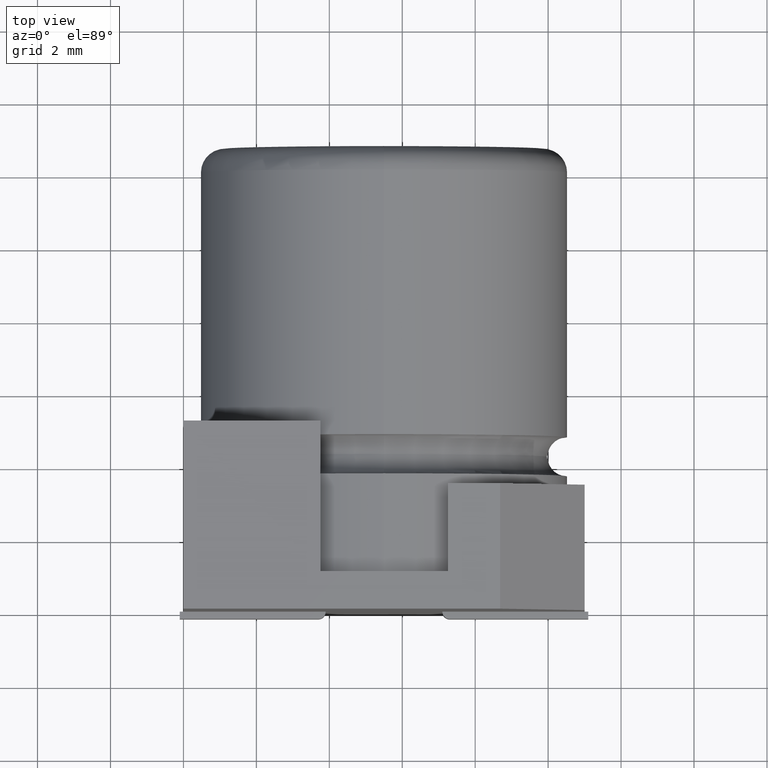
[diagram: clean part render]
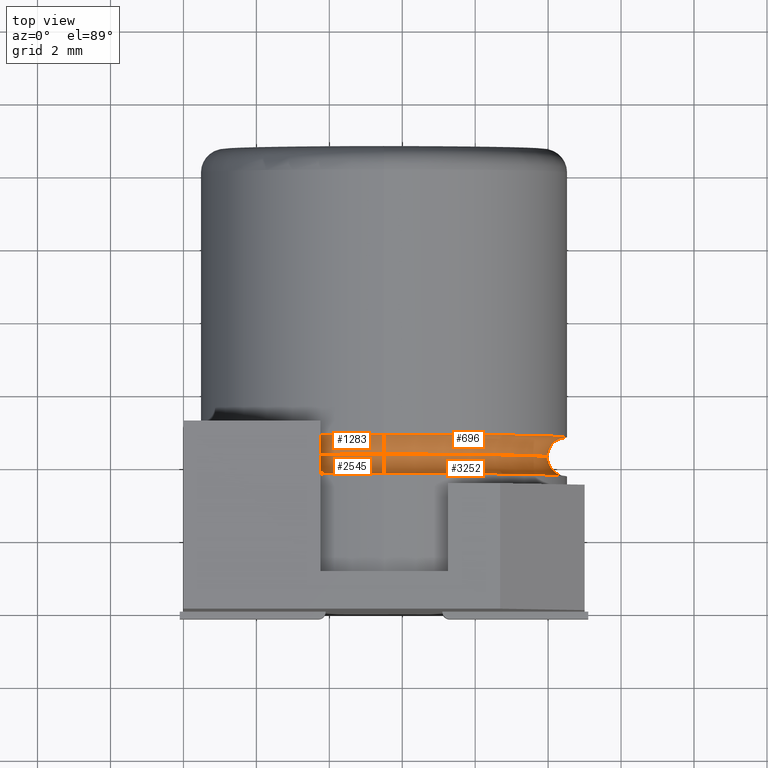
[diagram: same view with one multi-face feature highlighted, each face labeled with its STEP entity id]
A machine part, top view. The highlighted faces form ONE feature: a constant-radius fillet chain: 4 tangent blend faces with common blend radius 0.5353 mm. The faces share edges in the B-rep.
Their STEP definitions:
[1] entity #2545 (Torus):
#5 = DIRECTION ( 'NONE',  ( 1.000000000000000000, 0.0000000000000000000, -1.224646799147353200E-016 ) ) ;
#158 = ORIENTED_EDGE ( 'NONE', *, *, #3219, .F. ) ;
#369 = CARTESIAN_POINT ( 'NONE',  ( 5.500000000000000900, 4.254420000000000500, -0.7668750000000004200 ) ) ;
#373 = EDGE_CURVE ( 'NONE', #527, #607, #2134, .T. ) ;
#378 = CARTESIAN_POINT ( 'NONE',  ( 5.500000000000000900, 3.719070000000000300, -0.2315250000000006500 ) ) ;
#404 = DIRECTION ( 'NONE',  ( 0.0000000000000000000, 0.0000000000000000000, 1.000000000000000000 ) ) ;
#527 = VERTEX_POINT ( 'NONE', #378 ) ;
#591 = DIRECTION ( 'NONE',  ( -0.0000000000000000000, -1.000000000000000000, -0.0000000000000000000 ) ) ;
#593 = EDGE_CURVE ( 'NONE', #3420, #1760, #3344, .T. ) ;
#607 = VERTEX_POINT ( 'NONE', #369 ) ;
#652 = AXIS2_PLACEMENT_3D ( 'NONE', #2932, #591, #1365 ) ;
#870 = ORIENTED_EDGE ( 'NONE', *, *, #593, .F. ) ;
#899 = CARTESIAN_POINT ( 'NONE',  ( 5.500000000000000000, 3.719070000000000300, -5.250000000000000000 ) ) ;
#1021 = EDGE_LOOP ( 'NONE', ( #1366, #1224, #870, #158 ) ) ;
#1078 = CARTESIAN_POINT ( 'NONE',  ( 5.500000000000000000, 3.719070000000000300, -10.26847499999999900 ) ) ;
#1224 = ORIENTED_EDGE ( 'NONE', *, *, #2794, .T. ) ;
#1365 = DIRECTION ( 'NONE',  ( 0.0000000000000000000, 0.0000000000000000000, -1.000000000000000000 ) ) ;
#1366 = ORIENTED_EDGE ( 'NONE', *, *, #373, .T. ) ;
#1447 = AXIS2_PLACEMENT_3D ( 'NONE', #1734, #1473, #404 ) ;
#1473 = DIRECTION ( 'NONE',  ( -1.000000000000000000, 0.0000000000000000000, 0.0000000000000000000 ) ) ;
#1474 = DIRECTION ( 'NONE',  ( -0.0000000000000000000, -1.000000000000000000, -0.0000000000000000000 ) ) ;
#1693 = DIRECTION ( 'NONE',  ( 0.0000000000000000000, 0.0000000000000000000, -1.000000000000000000 ) ) ;
#1707 = AXIS2_PLACEMENT_3D ( 'NONE', #2626, #5, #3140 ) ;
#1734 = CARTESIAN_POINT ( 'NONE',  ( 5.500000000000000000, 4.254420000000000500, -10.26847499999999900 ) ) ;
#1760 = VERTEX_POINT ( 'NONE', #1779 ) ;
#1779 = CARTESIAN_POINT ( 'NONE',  ( 5.500000000000000000, 4.254420000000000500, -9.733124999999999400 ) ) ;
#2134 = CIRCLE ( 'NONE', #1707, 0.5353499999999997700 ) ;
#2480 = DIRECTION ( 'NONE',  ( -0.0000000000000000000, -1.000000000000000000, -0.0000000000000000000 ) ) ;
#2526 = DIRECTION ( 'NONE',  ( 0.0000000000000000000, 0.0000000000000000000, -1.000000000000000000 ) ) ;
#2545 = ADVANCED_FACE ( 'NONE', ( #3054 ), #2846, .F. ) ;
#2605 = AXIS2_PLACEMENT_3D ( 'NONE', #899, #2480, #1693 ) ;
#2626 = CARTESIAN_POINT ( 'NONE',  ( 5.500000000000000900, 4.254420000000000500, -0.2315250000000006500 ) ) ;
#2794 = EDGE_CURVE ( 'NONE', #607, #1760, #2972, .T. ) ;
#2846 = TOROIDAL_SURFACE ( 'NONE', #652, 5.018474999999999600, 0.5353499999999997700 ) ;
#2932 = CARTESIAN_POINT ( 'NONE',  ( 5.500000000000000000, 4.254420000000000500, -5.250000000000000000 ) ) ;
#2972 = CIRCLE ( 'NONE', #3107, 4.483125000000000200 ) ;
#3035 = CIRCLE ( 'NONE', #2605, 5.018474999999998700 ) ;
#3054 = FACE_OUTER_BOUND ( 'NONE', #1021, .T. ) ;
#3107 = AXIS2_PLACEMENT_3D ( 'NONE', #3305, #1474, #2526 ) ;
#3140 = DIRECTION ( 'NONE',  ( 0.0000000000000000000, 0.0000000000000000000, -1.000000000000000000 ) ) ;
#3219 = EDGE_CURVE ( 'NONE', #527, #3420, #3035, .T. ) ;
#3305 = CARTESIAN_POINT ( 'NONE',  ( 5.500000000000000000, 4.254420000000000500, -5.250000000000000000 ) ) ;
#3344 = CIRCLE ( 'NONE', #1447, 0.5353500000000004400 ) ;
#3420 = VERTEX_POINT ( 'NONE', #1078 ) ;
[2] entity #3252 (Torus):
#5 = DIRECTION ( 'NONE',  ( 1.000000000000000000, 0.0000000000000000000, -1.224646799147353200E-016 ) ) ;
#332 = AXIS2_PLACEMENT_3D ( 'NONE', #1801, #3076, #2550 ) ;
#369 = CARTESIAN_POINT ( 'NONE',  ( 5.500000000000000900, 4.254420000000000500, -0.7668750000000004200 ) ) ;
#373 = EDGE_CURVE ( 'NONE', #527, #607, #2134, .T. ) ;
#378 = CARTESIAN_POINT ( 'NONE',  ( 5.500000000000000900, 3.719070000000000300, -0.2315250000000006500 ) ) ;
#404 = DIRECTION ( 'NONE',  ( 0.0000000000000000000, 0.0000000000000000000, 1.000000000000000000 ) ) ;
#463 = CARTESIAN_POINT ( 'NONE',  ( 5.500000000000000000, 3.719070000000000300, -5.250000000000000000 ) ) ;
#527 = VERTEX_POINT ( 'NONE', #378 ) ;
#593 = EDGE_CURVE ( 'NONE', #3420, #1760, #3344, .T. ) ;
#607 = VERTEX_POINT ( 'NONE', #369 ) ;
#683 = EDGE_CURVE ( 'NONE', #1760, #607, #3395, .T. ) ;
#744 = DIRECTION ( 'NONE',  ( 0.0000000000000000000, 0.0000000000000000000, -1.000000000000000000 ) ) ;
#767 = ORIENTED_EDGE ( 'NONE', *, *, #683, .T. ) ;
#1029 = ORIENTED_EDGE ( 'NONE', *, *, #373, .F. ) ;
#1069 = ORIENTED_EDGE ( 'NONE', *, *, #2908, .F. ) ;
#1078 = CARTESIAN_POINT ( 'NONE',  ( 5.500000000000000000, 3.719070000000000300, -10.26847499999999900 ) ) ;
#1334 = AXIS2_PLACEMENT_3D ( 'NONE', #1954, #1933, #2221 ) ;
#1410 = CIRCLE ( 'NONE', #2681, 5.018474999999998700 ) ;
#1447 = AXIS2_PLACEMENT_3D ( 'NONE', #1734, #1473, #404 ) ;
#1473 = DIRECTION ( 'NONE',  ( -1.000000000000000000, 0.0000000000000000000, 0.0000000000000000000 ) ) ;
#1656 = TOROIDAL_SURFACE ( 'NONE', #1334, 5.018474999999999600, 0.5353499999999997700 ) ;
#1707 = AXIS2_PLACEMENT_3D ( 'NONE', #2626, #5, #3140 ) ;
#1734 = CARTESIAN_POINT ( 'NONE',  ( 5.500000000000000000, 4.254420000000000500, -10.26847499999999900 ) ) ;
#1760 = VERTEX_POINT ( 'NONE', #1779 ) ;
#1779 = CARTESIAN_POINT ( 'NONE',  ( 5.500000000000000000, 4.254420000000000500, -9.733124999999999400 ) ) ;
#1801 = CARTESIAN_POINT ( 'NONE',  ( 5.500000000000000000, 4.254420000000000500, -5.250000000000000000 ) ) ;
#1933 = DIRECTION ( 'NONE',  ( -0.0000000000000000000, -1.000000000000000000, -0.0000000000000000000 ) ) ;
#1954 = CARTESIAN_POINT ( 'NONE',  ( 5.500000000000000000, 4.254420000000000500, -5.250000000000000000 ) ) ;
#1979 = FACE_OUTER_BOUND ( 'NONE', #2751, .T. ) ;
#2134 = CIRCLE ( 'NONE', #1707, 0.5353499999999997700 ) ;
#2221 = DIRECTION ( 'NONE',  ( 0.0000000000000000000, 0.0000000000000000000, -1.000000000000000000 ) ) ;
#2465 = ORIENTED_EDGE ( 'NONE', *, *, #593, .T. ) ;
#2550 = DIRECTION ( 'NONE',  ( 0.0000000000000000000, 0.0000000000000000000, -1.000000000000000000 ) ) ;
#2626 = CARTESIAN_POINT ( 'NONE',  ( 5.500000000000000900, 4.254420000000000500, -0.2315250000000006500 ) ) ;
#2681 = AXIS2_PLACEMENT_3D ( 'NONE', #463, #3123, #744 ) ;
#2751 = EDGE_LOOP ( 'NONE', ( #2465, #767, #1029, #1069 ) ) ;
#2908 = EDGE_CURVE ( 'NONE', #3420, #527, #1410, .T. ) ;
#3076 = DIRECTION ( 'NONE',  ( -0.0000000000000000000, -1.000000000000000000, -0.0000000000000000000 ) ) ;
#3123 = DIRECTION ( 'NONE',  ( -0.0000000000000000000, -1.000000000000000000, -0.0000000000000000000 ) ) ;
#3140 = DIRECTION ( 'NONE',  ( 0.0000000000000000000, 0.0000000000000000000, -1.000000000000000000 ) ) ;
#3252 = ADVANCED_FACE ( 'NONE', ( #1979 ), #1656, .F. ) ;
#3344 = CIRCLE ( 'NONE', #1447, 0.5353500000000004400 ) ;
#3395 = CIRCLE ( 'NONE', #332, 4.483125000000000200 ) ;
#3420 = VERTEX_POINT ( 'NONE', #1078 ) ;
[3] entity #696 (Torus):
#32 = EDGE_CURVE ( 'NONE', #1760, #3286, #1461, .T. ) ;
#146 = CARTESIAN_POINT ( 'NONE',  ( 5.500000000000000900, 4.789770000000000700, -0.2315250000000006500 ) ) ;
#166 = DIRECTION ( 'NONE',  ( 0.0000000000000000000, 0.0000000000000000000, -1.000000000000000000 ) ) ;
#272 = DIRECTION ( 'NONE',  ( 0.0000000000000000000, 0.0000000000000000000, -1.000000000000000000 ) ) ;
#317 = AXIS2_PLACEMENT_3D ( 'NONE', #3089, #1746, #166 ) ;
#323 = DIRECTION ( 'NONE',  ( 0.0000000000000000000, 0.0000000000000000000, -1.000000000000000000 ) ) ;
#332 = AXIS2_PLACEMENT_3D ( 'NONE', #1801, #3076, #2550 ) ;
#369 = CARTESIAN_POINT ( 'NONE',  ( 5.500000000000000900, 4.254420000000000500, -0.7668750000000004200 ) ) ;
#485 = DIRECTION ( 'NONE',  ( 1.000000000000000000, 0.0000000000000000000, -1.224646799147353200E-016 ) ) ;
#607 = VERTEX_POINT ( 'NONE', #369 ) ;
#683 = EDGE_CURVE ( 'NONE', #1760, #607, #3395, .T. ) ;
#696 = ADVANCED_FACE ( 'NONE', ( #1911 ), #3097, .F. ) ;
#709 = AXIS2_PLACEMENT_3D ( 'NONE', #2805, #2307, #3038 ) ;
#791 = CIRCLE ( 'NONE', #2801, 0.5353499999999997700 ) ;
#887 = EDGE_CURVE ( 'NONE', #607, #1639, #791, .T. ) ;
#1018 = AXIS2_PLACEMENT_3D ( 'NONE', #3163, #3116, #272 ) ;
#1036 = ORIENTED_EDGE ( 'NONE', *, *, #887, .F. ) ;
#1403 = ORIENTED_EDGE ( 'NONE', *, *, #2328, .T. ) ;
#1461 = CIRCLE ( 'NONE', #709, 0.5353500000000004400 ) ;
#1482 = EDGE_LOOP ( 'NONE', ( #2077, #1534, #1403, #1036 ) ) ;
#1534 = ORIENTED_EDGE ( 'NONE', *, *, #32, .T. ) ;
#1639 = VERTEX_POINT ( 'NONE', #146 ) ;
#1710 = CARTESIAN_POINT ( 'NONE',  ( 5.500000000000000000, 4.789770000000000700, -10.26847499999999900 ) ) ;
#1746 = DIRECTION ( 'NONE',  ( -0.0000000000000000000, -1.000000000000000000, -0.0000000000000000000 ) ) ;
#1760 = VERTEX_POINT ( 'NONE', #1779 ) ;
#1779 = CARTESIAN_POINT ( 'NONE',  ( 5.500000000000000000, 4.254420000000000500, -9.733124999999999400 ) ) ;
#1801 = CARTESIAN_POINT ( 'NONE',  ( 5.500000000000000000, 4.254420000000000500, -5.250000000000000000 ) ) ;
#1911 = FACE_OUTER_BOUND ( 'NONE', #1482, .T. ) ;
#2077 = ORIENTED_EDGE ( 'NONE', *, *, #683, .F. ) ;
#2237 = CIRCLE ( 'NONE', #1018, 5.018474999999998700 ) ;
#2307 = DIRECTION ( 'NONE',  ( -1.000000000000000000, 0.0000000000000000000, 0.0000000000000000000 ) ) ;
#2328 = EDGE_CURVE ( 'NONE', #3286, #1639, #2237, .T. ) ;
#2550 = DIRECTION ( 'NONE',  ( 0.0000000000000000000, 0.0000000000000000000, -1.000000000000000000 ) ) ;
#2801 = AXIS2_PLACEMENT_3D ( 'NONE', #3385, #485, #323 ) ;
#2805 = CARTESIAN_POINT ( 'NONE',  ( 5.500000000000000000, 4.254420000000000500, -10.26847499999999900 ) ) ;
#3038 = DIRECTION ( 'NONE',  ( 0.0000000000000000000, 0.0000000000000000000, 1.000000000000000000 ) ) ;
#3076 = DIRECTION ( 'NONE',  ( -0.0000000000000000000, -1.000000000000000000, -0.0000000000000000000 ) ) ;
#3089 = CARTESIAN_POINT ( 'NONE',  ( 5.500000000000000000, 4.254420000000000500, -5.250000000000000000 ) ) ;
#3097 = TOROIDAL_SURFACE ( 'NONE', #317, 5.018474999999999600, 0.5353499999999997700 ) ;
#3116 = DIRECTION ( 'NONE',  ( -0.0000000000000000000, -1.000000000000000000, -0.0000000000000000000 ) ) ;
#3163 = CARTESIAN_POINT ( 'NONE',  ( 5.500000000000000000, 4.789770000000000700, -5.250000000000000000 ) ) ;
#3286 = VERTEX_POINT ( 'NONE', #1710 ) ;
#3385 = CARTESIAN_POINT ( 'NONE',  ( 5.500000000000000900, 4.254420000000000500, -0.2315250000000006500 ) ) ;
#3395 = CIRCLE ( 'NONE', #332, 4.483125000000000200 ) ;
[4] entity #1283 (Torus):
#32 = EDGE_CURVE ( 'NONE', #1760, #3286, #1461, .T. ) ;
#139 = DIRECTION ( 'NONE',  ( -0.0000000000000000000, -1.000000000000000000, -0.0000000000000000000 ) ) ;
#146 = CARTESIAN_POINT ( 'NONE',  ( 5.500000000000000900, 4.789770000000000700, -0.2315250000000006500 ) ) ;
#247 = AXIS2_PLACEMENT_3D ( 'NONE', #3292, #139, #1991 ) ;
#323 = DIRECTION ( 'NONE',  ( 0.0000000000000000000, 0.0000000000000000000, -1.000000000000000000 ) ) ;
#369 = CARTESIAN_POINT ( 'NONE',  ( 5.500000000000000900, 4.254420000000000500, -0.7668750000000004200 ) ) ;
#485 = DIRECTION ( 'NONE',  ( 1.000000000000000000, 0.0000000000000000000, -1.224646799147353200E-016 ) ) ;
#601 = ORIENTED_EDGE ( 'NONE', *, *, #2794, .F. ) ;
#607 = VERTEX_POINT ( 'NONE', #369 ) ;
#709 = AXIS2_PLACEMENT_3D ( 'NONE', #2805, #2307, #3038 ) ;
#791 = CIRCLE ( 'NONE', #2801, 0.5353499999999997700 ) ;
#887 = EDGE_CURVE ( 'NONE', #607, #1639, #791, .T. ) ;
#1025 = ORIENTED_EDGE ( 'NONE', *, *, #32, .F. ) ;
#1114 = FACE_OUTER_BOUND ( 'NONE', #2027, .T. ) ;
#1283 = ADVANCED_FACE ( 'NONE', ( #1114 ), #2698, .F. ) ;
#1461 = CIRCLE ( 'NONE', #709, 0.5353500000000004400 ) ;
#1474 = DIRECTION ( 'NONE',  ( -0.0000000000000000000, -1.000000000000000000, -0.0000000000000000000 ) ) ;
#1639 = VERTEX_POINT ( 'NONE', #146 ) ;
#1642 = ORIENTED_EDGE ( 'NONE', *, *, #3351, .T. ) ;
#1710 = CARTESIAN_POINT ( 'NONE',  ( 5.500000000000000000, 4.789770000000000700, -10.26847499999999900 ) ) ;
#1760 = VERTEX_POINT ( 'NONE', #1779 ) ;
#1779 = CARTESIAN_POINT ( 'NONE',  ( 5.500000000000000000, 4.254420000000000500, -9.733124999999999400 ) ) ;
#1782 = CARTESIAN_POINT ( 'NONE',  ( 5.500000000000000000, 4.254420000000000500, -5.250000000000000000 ) ) ;
#1991 = DIRECTION ( 'NONE',  ( 0.0000000000000000000, 0.0000000000000000000, -1.000000000000000000 ) ) ;
#2027 = EDGE_LOOP ( 'NONE', ( #601, #2878, #1642, #1025 ) ) ;
#2307 = DIRECTION ( 'NONE',  ( -1.000000000000000000, 0.0000000000000000000, 0.0000000000000000000 ) ) ;
#2526 = DIRECTION ( 'NONE',  ( 0.0000000000000000000, 0.0000000000000000000, -1.000000000000000000 ) ) ;
#2668 = CIRCLE ( 'NONE', #247, 5.018474999999998700 ) ;
#2698 = TOROIDAL_SURFACE ( 'NONE', #3166, 5.018474999999999600, 0.5353499999999997700 ) ;
#2794 = EDGE_CURVE ( 'NONE', #607, #1760, #2972, .T. ) ;
#2801 = AXIS2_PLACEMENT_3D ( 'NONE', #3385, #485, #323 ) ;
#2805 = CARTESIAN_POINT ( 'NONE',  ( 5.500000000000000000, 4.254420000000000500, -10.26847499999999900 ) ) ;
#2878 = ORIENTED_EDGE ( 'NONE', *, *, #887, .T. ) ;
#2972 = CIRCLE ( 'NONE', #3107, 4.483125000000000200 ) ;
#3038 = DIRECTION ( 'NONE',  ( 0.0000000000000000000, 0.0000000000000000000, 1.000000000000000000 ) ) ;
#3073 = DIRECTION ( 'NONE',  ( -0.0000000000000000000, -1.000000000000000000, -0.0000000000000000000 ) ) ;
#3107 = AXIS2_PLACEMENT_3D ( 'NONE', #3305, #1474, #2526 ) ;
#3142 = DIRECTION ( 'NONE',  ( 0.0000000000000000000, 0.0000000000000000000, -1.000000000000000000 ) ) ;
#3166 = AXIS2_PLACEMENT_3D ( 'NONE', #1782, #3073, #3142 ) ;
#3286 = VERTEX_POINT ( 'NONE', #1710 ) ;
#3292 = CARTESIAN_POINT ( 'NONE',  ( 5.500000000000000000, 4.789770000000000700, -5.250000000000000000 ) ) ;
#3305 = CARTESIAN_POINT ( 'NONE',  ( 5.500000000000000000, 4.254420000000000500, -5.250000000000000000 ) ) ;
#3351 = EDGE_CURVE ( 'NONE', #1639, #3286, #2668, .T. ) ;
#3385 = CARTESIAN_POINT ( 'NONE',  ( 5.500000000000000900, 4.254420000000000500, -0.2315250000000006500 ) ) ;